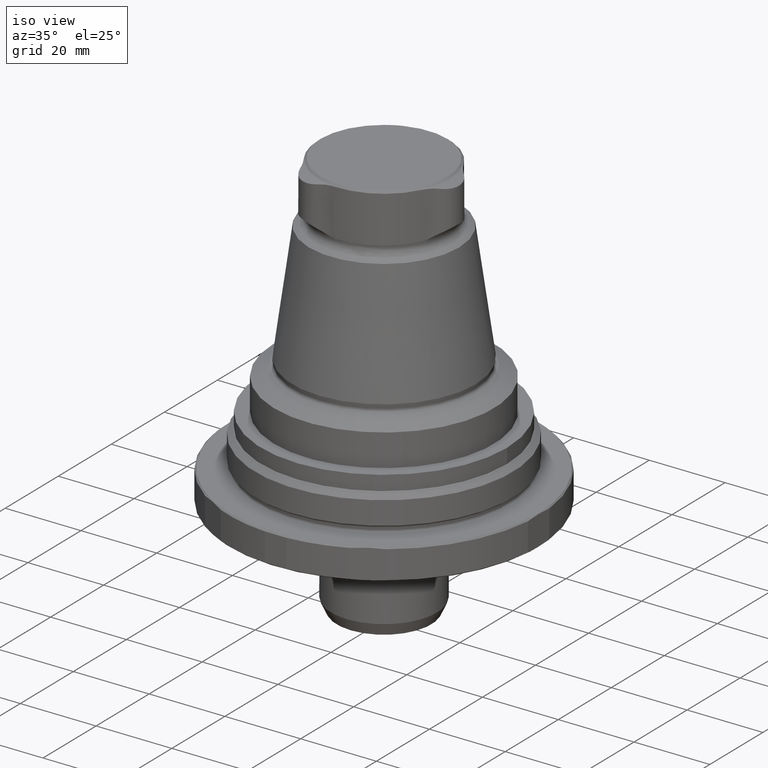
[diagram: clean part render]
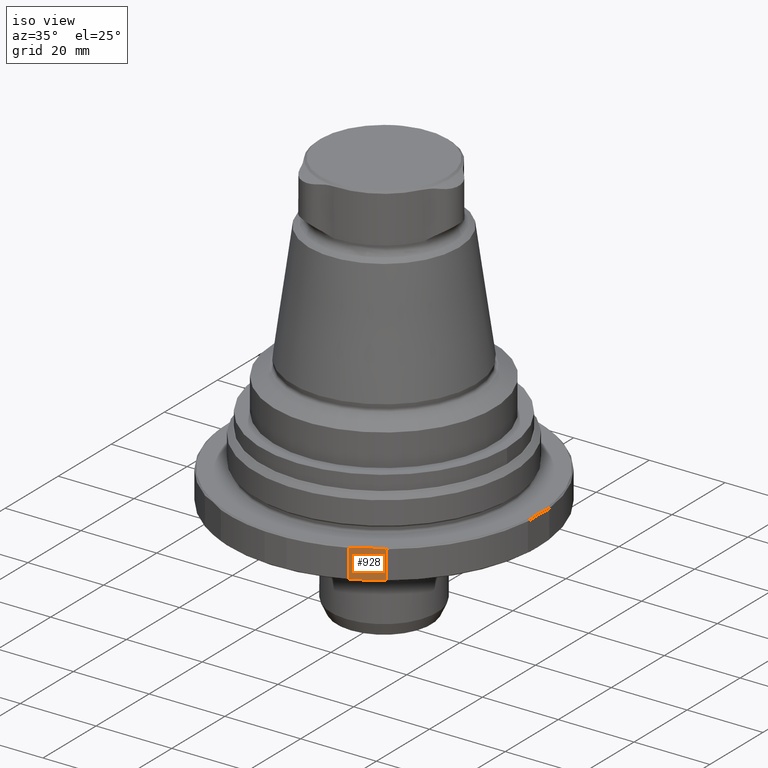
[diagram: same view with one face highlighted and labeled with its STEP entity id]
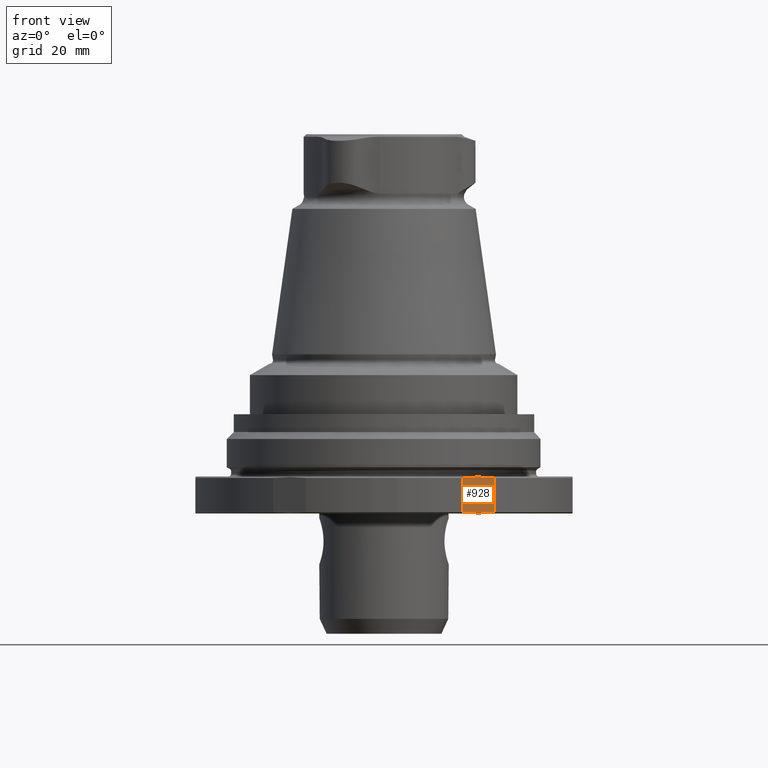
[diagram: same view with one face highlighted and labeled with its STEP entity id]
A machine part, iso view. The second image highlights one B-rep face of the part: STEP entity #928.
A second angle (front view) of the same face is appended — the face is thin or edge-on in the first view.
In plain terms, the highlighted planar face has unit normal (-0.5, 0.866, -0).
Its self-contained STEP definition (entity closure, byte-faithful):
#38=LINE('',#1708,#66);
#39=LINE('',#1715,#67);
#66=VECTOR('',#1265,1000.);
#67=VECTOR('',#1268,1000.);
#101=PLANE('',#1048);
#325=ORIENTED_EDGE('',*,*,#501,.F.);
#326=ORIENTED_EDGE('',*,*,#502,.F.);
#327=ORIENTED_EDGE('',*,*,#503,.F.);
#328=ORIENTED_EDGE('',*,*,#485,.F.);
#485=EDGE_CURVE('',#593,#594,#653,.T.);
#501=EDGE_CURVE('',#608,#593,#38,.F.);
#502=EDGE_CURVE('',#609,#608,#660,.T.);
#503=EDGE_CURVE('',#594,#609,#39,.T.);
#593=VERTEX_POINT('',#1654);
#594=VERTEX_POINT('',#1659);
#608=VERTEX_POINT('',#1707);
#609=VERTEX_POINT('',#1714);
#653=B_SPLINE_CURVE_WITH_KNOTS('',3,(#1655,#1656,#1657,#1658),
 .UNSPECIFIED.,.F.,.F.,(4,4),(0.00557144708641946,0.0136408878602545),
 .UNSPECIFIED.);
#660=B_SPLINE_CURVE_WITH_KNOTS('',3,(#1710,#1711,#1712,#1713),
 .UNSPECIFIED.,.F.,.F.,(4,4),(0.0141550941599224,0.0221911710009365),
 .UNSPECIFIED.);
#737=EDGE_LOOP('',(#325,#326,#327,#328));
#832=FACE_BOUND('',#737,.T.);
#928=ADVANCED_FACE('',(#832),#101,.F.);
#1048=AXIS2_PLACEMENT_3D('',#1709,#1266,#1267);
#1265=DIRECTION('',(-7.30126435159279E-33,-9.52839055771651E-18,-1.));
#1266=DIRECTION('',(-0.500000000000001,0.866025403784438,-8.25182828016226E-18));
#1267=DIRECTION('',(-7.30126435159279E-33,-9.52839055771651E-18,-1.));
#1268=DIRECTION('',(-7.30126435159279E-33,-9.52839055771651E-18,-1.));
#1654=CARTESIAN_POINT('',(16.8971440223727,-37.3562113160208,-1.30000000000001));
#1655=CARTESIAN_POINT('',(16.8971440223727,-37.3562113160208,-1.30000000000001));
#1656=CARTESIAN_POINT('',(19.2155409083335,-36.0176842498229,-1.03590210112195));
#1657=CARTESIAN_POINT('',(21.5731526377083,-34.6565164832237,-1.03461413755013));
#1658=CARTESIAN_POINT('',(23.9028559776274,-33.3114616327894,-1.30000000000001));
#1659=CARTESIAN_POINT('',(23.9028559776274,-33.3114616327894,-1.30000000000001));
#1707=CARTESIAN_POINT('',(16.8971440223727,-37.3562113160207,-8.70000000000001));
#1708=CARTESIAN_POINT('',(16.8971440223727,-37.3562113160208,-1.00000000000001));
#1709=CARTESIAN_POINT('',(20.4,-35.3338364744051,-5.));
#1710=CARTESIAN_POINT('',(23.9028559776274,-33.3114616327895,-8.70000000000001));
#1711=CARTESIAN_POINT('',(21.5731526377083,-34.6565164832237,-8.96538586244988));
#1712=CARTESIAN_POINT('',(19.2155409083335,-36.0176842498229,-8.96409789887806));
#1713=CARTESIAN_POINT('',(16.8971440223727,-37.3562113160207,-8.7));
#1714=CARTESIAN_POINT('',(23.9028559776274,-33.3114616327895,-8.70000000000003));
#1715=CARTESIAN_POINT('',(23.9028559776274,-33.3114616327894,-1.00000000000001));